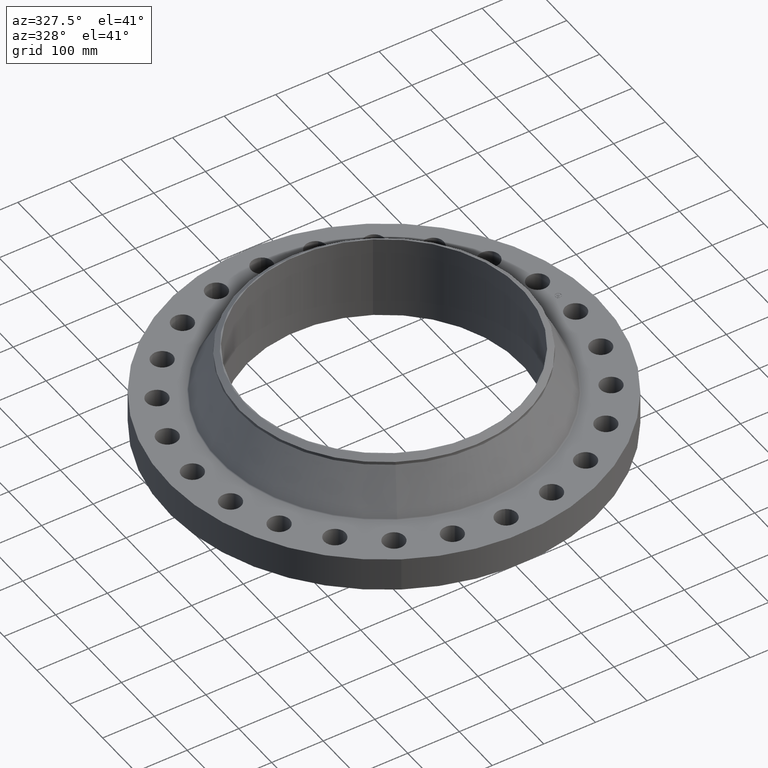
[diagram: clean part render]
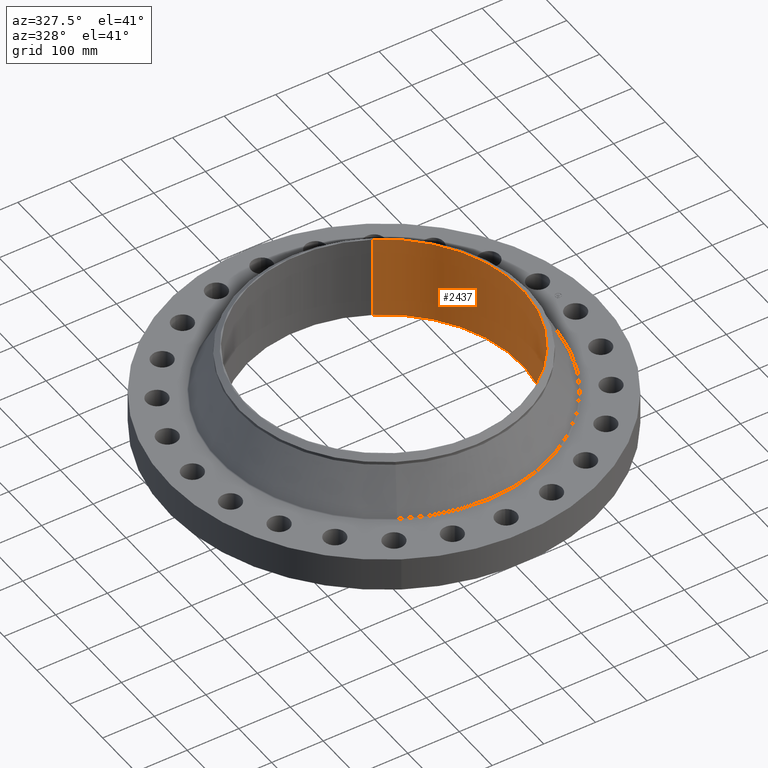
[diagram: same view with one face highlighted and labeled with its STEP entity id]
A machine part, auxiliary view. The second image highlights one B-rep face of the part: STEP entity #2437.
In plain terms, the highlighted cylindrical surface (partial cylindrical patch) has radius 266.7 mm, axis along (0, 0, -1).
Its self-contained STEP definition (entity closure, byte-faithful):
#1142=AXIS2_PLACEMENT_3D('Circle Axis2P3D',#1140,#1141,$) ;
#2410=AXIS2_PLACEMENT_3D('Cylinder Axis2P3D',#2407,#2408,#2409) ;
#2414=AXIS2_PLACEMENT_3D('Circle Axis2P3D',#2412,#2413,$) ;
#1140=CARTESIAN_POINT('Axis2P3D Location',(-1.28132675074E-011,-3.33451551585E-013,0.)) ;
#1144=CARTESIAN_POINT('Vertex',(5.03396815535,9.21461689985,-2.32073328184E-012)) ;
#1146=CARTESIAN_POINT('Vertex',(-5.03396815535,-9.21461689985,-7.60896157979E-014)) ;
#2407=CARTESIAN_POINT('Axis2P3D Location',(0.,0.,3.21500000001)) ;
#2412=CARTESIAN_POINT('Axis2P3D Location',(0.,0.,6.43000000002)) ;
#2416=CARTESIAN_POINT('Vertex',(5.03396815534,9.21461689985,6.43000000002)) ;
#2418=CARTESIAN_POINT('Vertex',(-5.03396815535,-9.21461689985,6.43000000002)) ;
#2421=CARTESIAN_POINT('Line Origine',(5.03396815535,9.21461689985,3.21500000001)) ;
#2426=CARTESIAN_POINT('Line Origine',(-5.03396815535,-9.21461689985,3.21500000001)) ;
#1141=DIRECTION('Axis2P3D Direction',(0.,0.,-0.0393700787402)) ;
#2408=DIRECTION('Axis2P3D Direction',(0.,0.,-0.0393700787402)) ;
#2409=DIRECTION('Axis2P3D XDirection',(0.0188750212049,0.0345504945626,0.)) ;
#2413=DIRECTION('Axis2P3D Direction',(0.,0.,-0.0393700787402)) ;
#2422=DIRECTION('Vector Direction',(0.,0.,-0.0393700787402)) ;
#2427=DIRECTION('Vector Direction',(0.,0.,-0.0393700787402)) ;
#2423=VECTOR('Line Direction',#2422,0.0393700787402) ;
#2428=VECTOR('Line Direction',#2427,0.0393700787402) ;
#2432=ORIENTED_EDGE('',*,*,#2420,.F.) ;
#2433=ORIENTED_EDGE('',*,*,#2425,.T.) ;
#2434=ORIENTED_EDGE('',*,*,#1148,.T.) ;
#2435=ORIENTED_EDGE('',*,*,#2430,.F.) ;
#2437=ADVANCED_FACE('PartBody',(#2436),#2411,.F.) ;
#1143=CIRCLE('generated circle',#1142,10.5) ;
#2415=CIRCLE('generated circle',#2414,10.5) ;
#2411=CYLINDRICAL_SURFACE('generated cylinder',#2410,10.5) ;
#1148=EDGE_CURVE('',#1145,#1147,#1143,.T.) ;
#2420=EDGE_CURVE('',#2417,#2419,#2415,.T.) ;
#2425=EDGE_CURVE('',#2417,#1145,#2424,.T.) ;
#2430=EDGE_CURVE('',#2419,#1147,#2429,.T.) ;
#2431=EDGE_LOOP('',(#2432,#2433,#2434,#2435)) ;
#2436=FACE_OUTER_BOUND('',#2431,.T.) ;
#2424=LINE('Line',#2421,#2423) ;
#2429=LINE('Line',#2426,#2428) ;
#1145=VERTEX_POINT('',#1144) ;
#1147=VERTEX_POINT('',#1146) ;
#2417=VERTEX_POINT('',#2416) ;
#2419=VERTEX_POINT('',#2418) ;